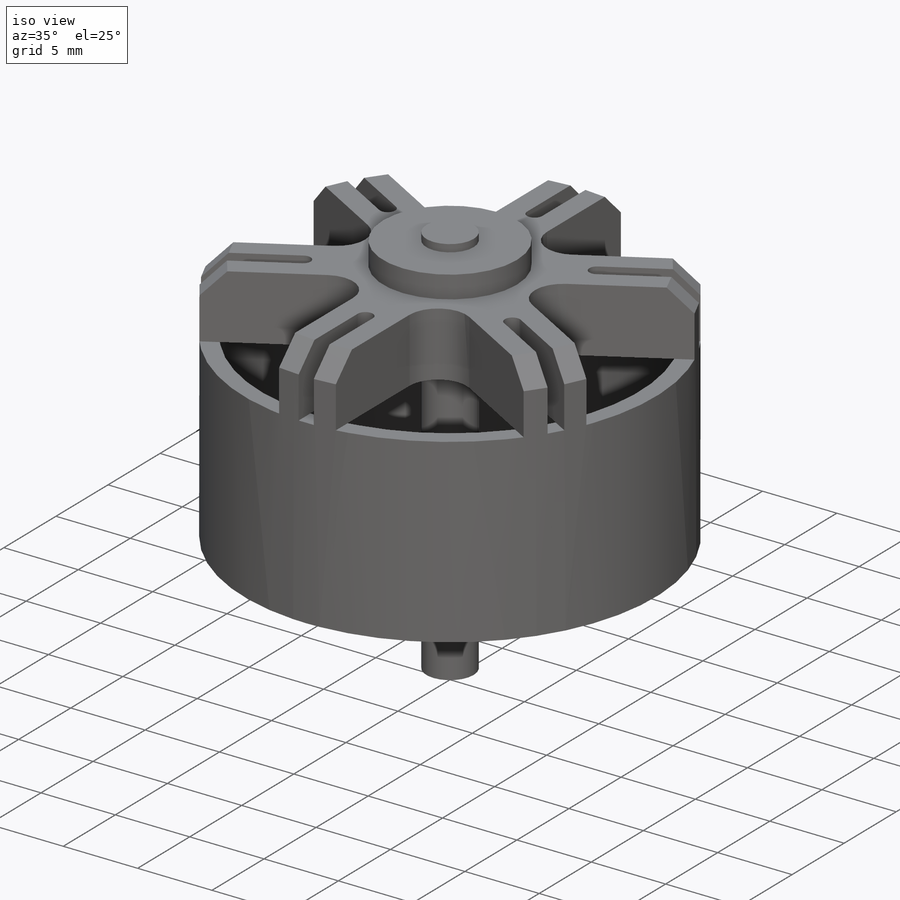
[diagram: iso view]
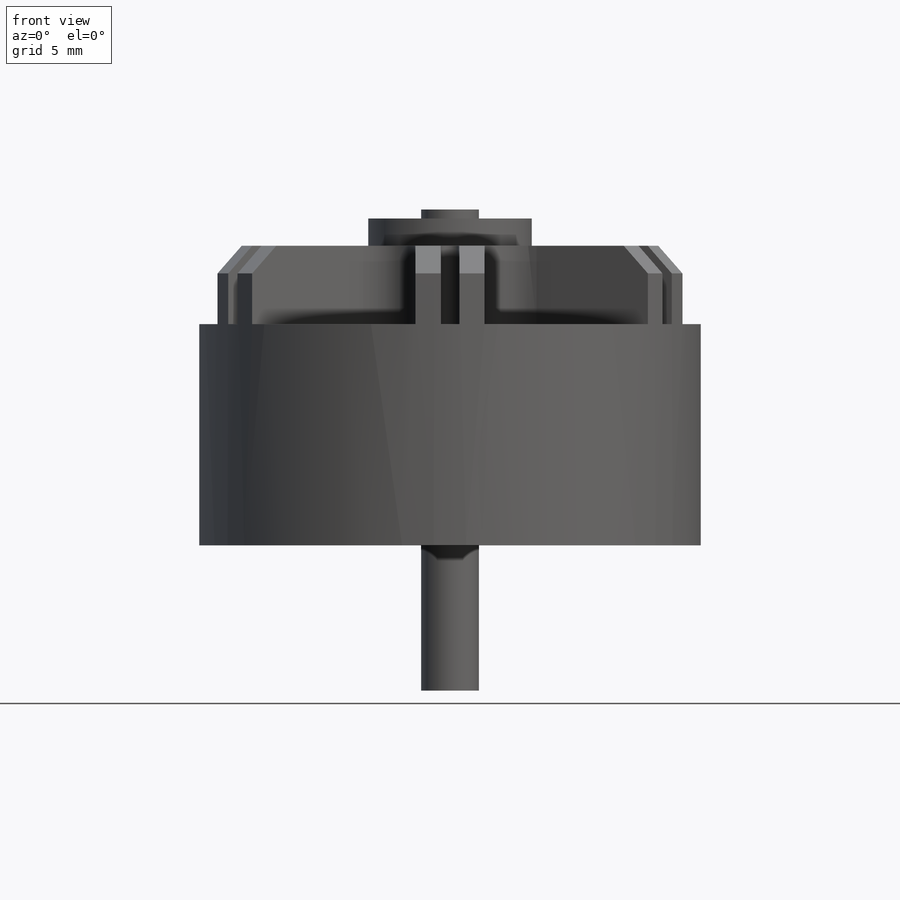
[diagram: front view]
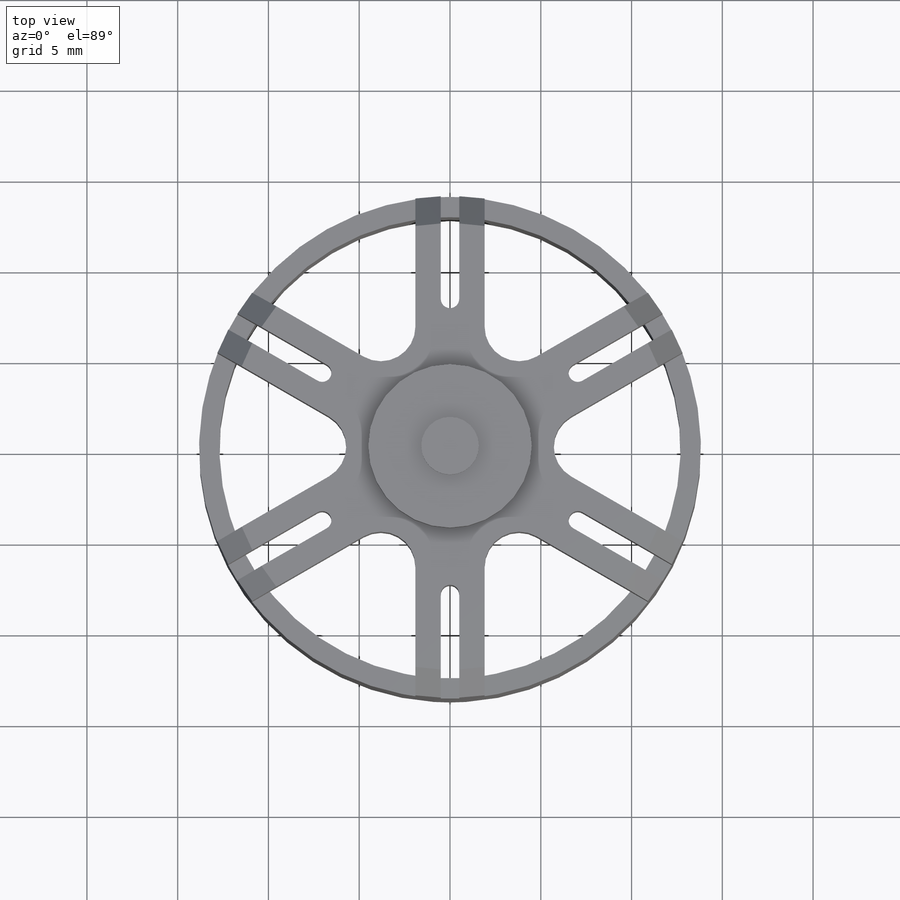
[diagram: top view]
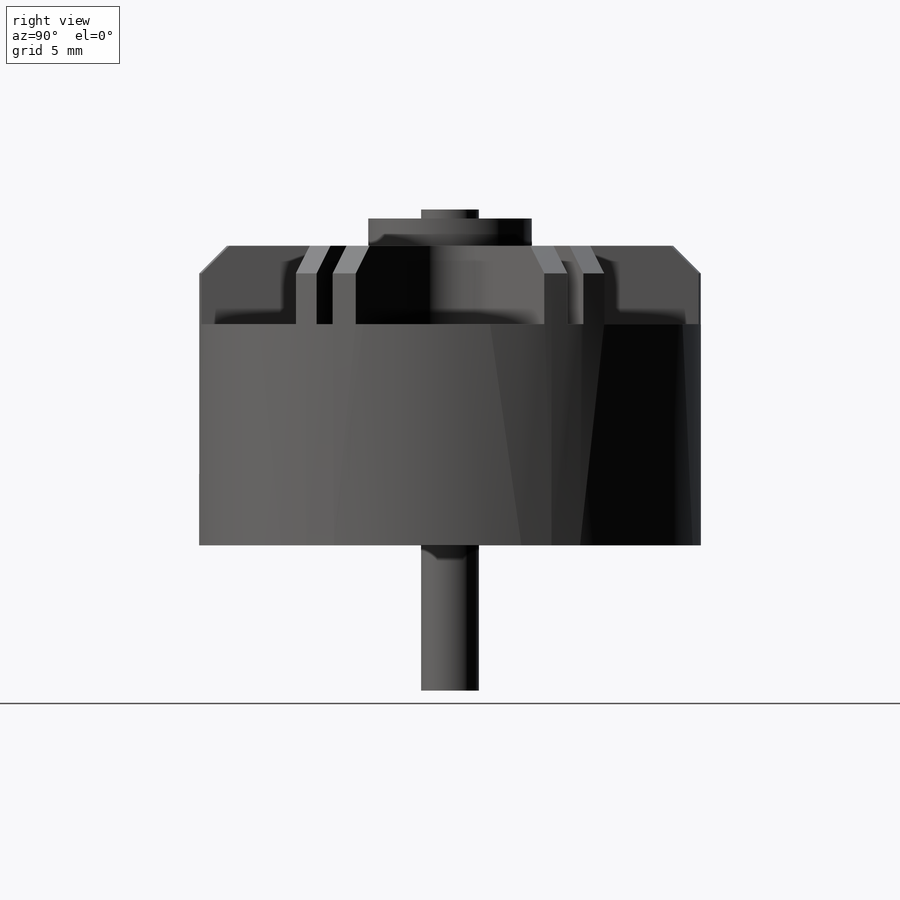
[diagram: right view]
SOLIDWORKS PART (.sldprt)
format: sldprt  version: not decoded by parser v0  size: 294,400 bytes
history: native  units: mm
features: sketch x5, extrude x4, material x1, cut_extrude x1, pattern_circular x1, chamfer x1 (+11 scaffold rows collapsed)
feature tree (24):
  scaffold x11  (default folders/planes/origin — collapsed)
  material  "Material <not specified>"
  sketch  "Sketch1"  dims[D1=27.6352mm D2=25.4mm]
  extrude  "Boss-Extrude1"  Depth=16.5mm
  sketch  "Sketch2"
  extrude  "Boss-Extrude2"  Depth=4.318mm
  sketch  "Sketch3"  dims[c1.D1=15.24mm c1.D2=~7.492005mm c2.D2=60.0deg c2.D3=3.81mm c2.D4=3.81mm c2.D5=0.508mm c2.D6=0.508mm]
  cut_extrude  "Cut-Extrude1"  [1 undecoded]
  pattern_circular  "CirPattern1"  Count=6 Angle=360deg
  chamfer  "Chamfer1"  Distance=1.524mm Angle=45deg
  sketch  "Sketch4"  dims[D1=9.0mm]
  extrude  "Boss-Extrude3"  Depth=1.5mm
  sketch  "Sketch5"  dims[D1=3.175mm]
  extrude  "Boss-Extrude4"  Depth=26mm
decode coverage: 10 of 12 modeling features carry decoded parameters
note: ~ marks probable driven/reference dimensions
note: 1 parameter value undecoded
note: suppression state not decoded; provenance and decode notes live in map.json
